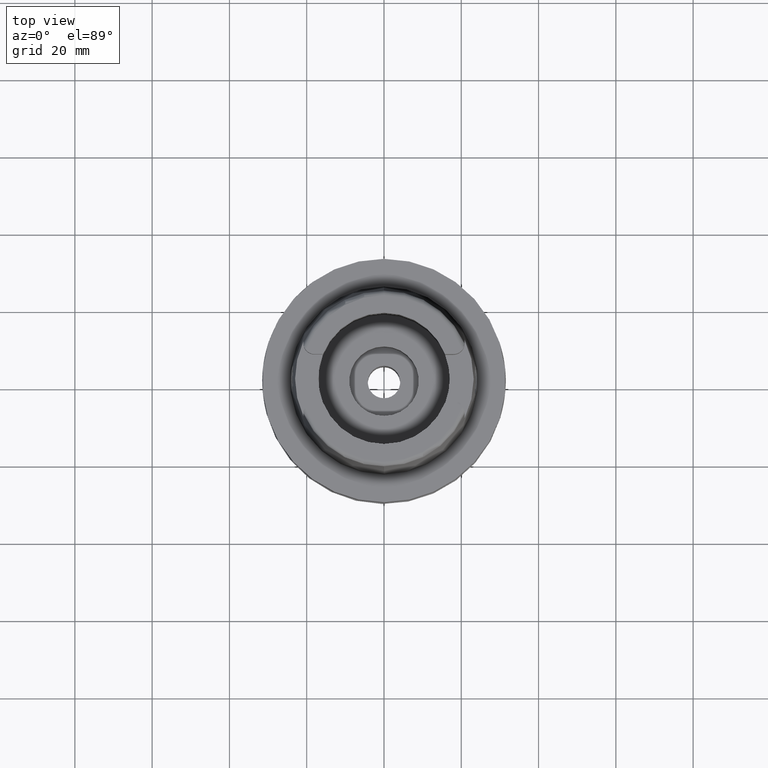
[diagram: clean part render]
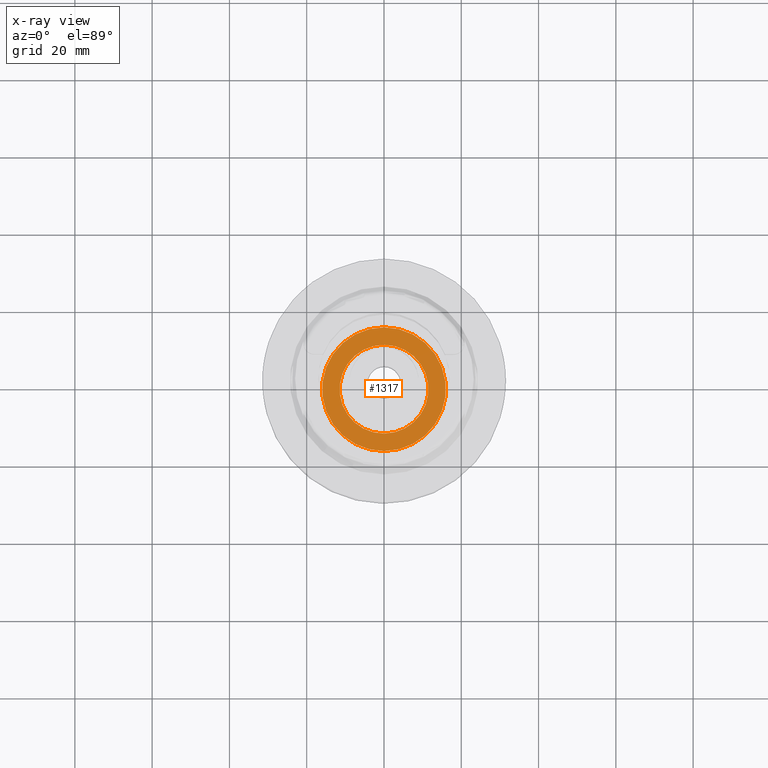
[diagram: x-ray — body ghosted, one internal face saturated and labeled with its STEP entity id]
A machine part, top view, then the same camera in x-ray: the body is ghosted and one INTERNAL B-rep face — a face not visible from any outside direction — is saturated and labeled: STEP entity #1317.
In plain terms, the highlighted planar face has unit normal (0, 0, -1).
Its self-contained STEP definition (entity closure, byte-faithful):
#40 = DIRECTION ( 'NONE',  ( 0.0000000000000000000, 0.0000000000000000000, -1.000000000000000000 ) ) ;
#57 = AXIS2_PLACEMENT_3D ( 'NONE', #2969, #2053, #636 ) ;
#636 = DIRECTION ( 'NONE',  ( 0.0000000000000000000, 1.000000000000000000, 0.0000000000000000000 ) ) ;
#797 = ORIENTED_EDGE ( 'NONE', *, *, #4951, .F. ) ;
#971 = DIRECTION ( 'NONE',  ( 0.0000000000000000000, -1.000000000000000000, 0.0000000000000000000 ) ) ;
#973 = DIRECTION ( 'NONE',  ( 0.0000000000000000000, 0.0000000000000000000, 1.000000000000000000 ) ) ;
#1203 = CARTESIAN_POINT ( 'NONE',  ( 0.0000000000000000000, 0.0000000000000000000, -10.80000000000000071 ) ) ;
#1231 = EDGE_LOOP ( 'NONE', ( #3358, #2721 ) ) ;
#1317 = ADVANCED_FACE ( 'NONE', ( #3788, #4354 ), #5720, .F. ) ;
#1620 = VERTEX_POINT ( 'NONE', #2253 ) ;
#1693 = DIRECTION ( 'NONE',  ( 0.0000000000000000000, -1.000000000000000000, 0.0000000000000000000 ) ) ;
#1730 = CIRCLE ( 'NONE', #4085, 11.50000000000000000 ) ;
#1912 = DIRECTION ( 'NONE',  ( 0.0000000000000000000, 1.000000000000000000, 0.0000000000000000000 ) ) ;
#1965 = VERTEX_POINT ( 'NONE', #5875 ) ;
#2053 = DIRECTION ( 'NONE',  ( 0.0000000000000000000, 0.0000000000000000000, -1.000000000000000000 ) ) ;
#2146 = DIRECTION ( 'NONE',  ( 0.0000000000000000000, 0.0000000000000000000, -1.000000000000000000 ) ) ;
#2253 = CARTESIAN_POINT ( 'NONE',  ( 0.0000000000000000000, 16.00000000000000000, -10.80000000000000071 ) ) ;
#2329 = AXIS2_PLACEMENT_3D ( 'NONE', #4993, #2146, #1693 ) ;
#2704 = CIRCLE ( 'NONE', #57, 16.00000000000000000 ) ;
#2721 = ORIENTED_EDGE ( 'NONE', *, *, #5242, .F. ) ;
#2722 = EDGE_CURVE ( 'NONE', #1965, #3633, #1730, .T. ) ;
#2969 = CARTESIAN_POINT ( 'NONE',  ( 0.0000000000000000000, 0.0000000000000000000, -10.80000000000000071 ) ) ;
#2999 = DIRECTION ( 'NONE',  ( 0.0000000000000000000, -1.000000000000000000, 0.0000000000000000000 ) ) ;
#3093 = DIRECTION ( 'NONE',  ( 0.0000000000000000000, 0.0000000000000000000, 1.000000000000000000 ) ) ;
#3358 = ORIENTED_EDGE ( 'NONE', *, *, #2722, .F. ) ;
#3633 = VERTEX_POINT ( 'NONE', #3654 ) ;
#3654 = CARTESIAN_POINT ( 'NONE',  ( 0.0000000000000000000, -11.50000000000000000, -10.80000000000000071 ) ) ;
#3759 = CARTESIAN_POINT ( 'NONE',  ( 0.0000000000000000000, 0.0000000000000000000, -10.80000000000000071 ) ) ;
#3788 = FACE_OUTER_BOUND ( 'NONE', #5536, .T. ) ;
#4085 = AXIS2_PLACEMENT_3D ( 'NONE', #3759, #973, #1912 ) ;
#4159 = EDGE_CURVE ( 'NONE', #5597, #1620, #4990, .T. ) ;
#4194 = AXIS2_PLACEMENT_3D ( 'NONE', #1203, #3093, #2999 ) ;
#4354 = FACE_BOUND ( 'NONE', #1231, .T. ) ;
#4951 = EDGE_CURVE ( 'NONE', #1620, #5597, #2704, .T. ) ;
#4990 = CIRCLE ( 'NONE', #2329, 16.00000000000000000 ) ;
#4993 = CARTESIAN_POINT ( 'NONE',  ( 0.0000000000000000000, 0.0000000000000000000, -10.80000000000000071 ) ) ;
#5181 = CARTESIAN_POINT ( 'NONE',  ( 0.0000000000000000000, 0.0000000000000000000, -10.80000000000000071 ) ) ;
#5242 = EDGE_CURVE ( 'NONE', #3633, #1965, #5472, .T. ) ;
#5472 = CIRCLE ( 'NONE', #4194, 11.50000000000000000 ) ;
#5536 = EDGE_LOOP ( 'NONE', ( #797, #6015 ) ) ;
#5597 = VERTEX_POINT ( 'NONE', #5761 ) ;
#5720 = PLANE ( 'NONE',  #6040 ) ;
#5761 = CARTESIAN_POINT ( 'NONE',  ( 0.0000000000000000000, -16.00000000000000000, -10.80000000000000071 ) ) ;
#5875 = CARTESIAN_POINT ( 'NONE',  ( 0.0000000000000000000, 11.50000000000000000, -10.80000000000000071 ) ) ;
#6015 = ORIENTED_EDGE ( 'NONE', *, *, #4159, .F. ) ;
#6040 = AXIS2_PLACEMENT_3D ( 'NONE', #5181, #40, #971 ) ;